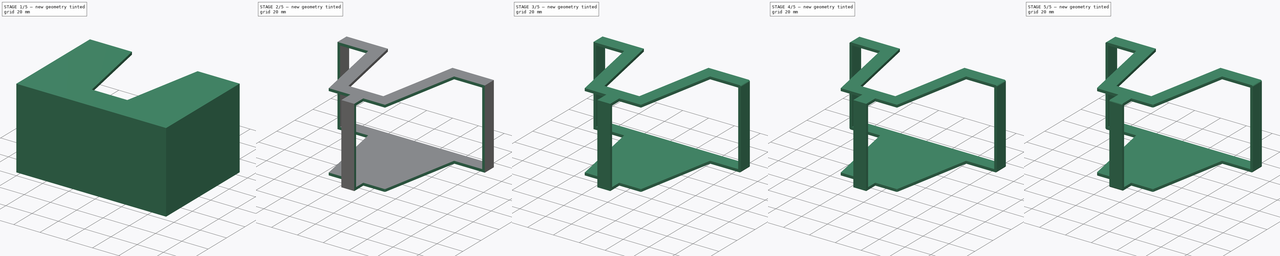
[diagram: build sequence overview — one tinted view per stage of 5, left to right]
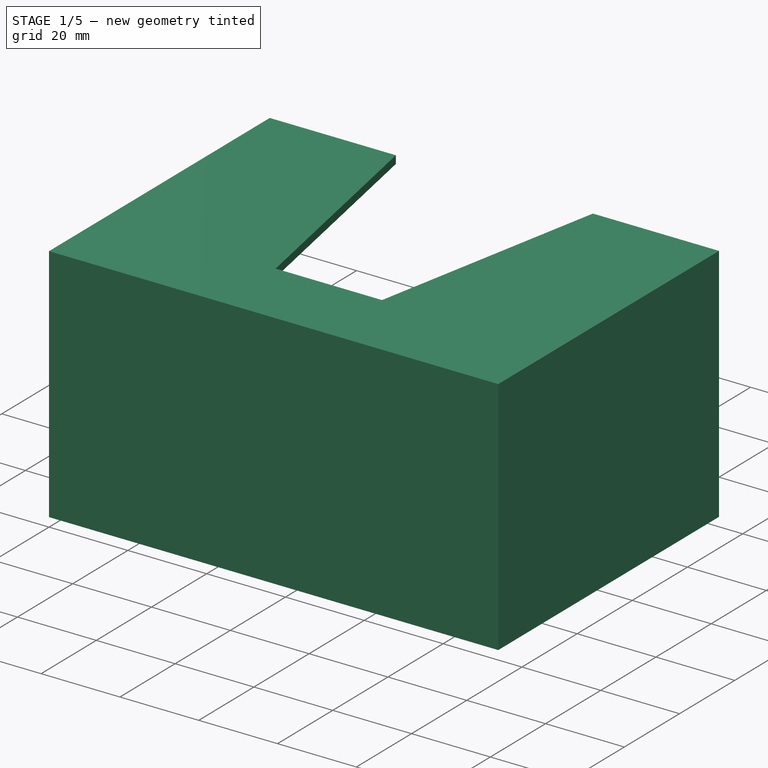
[diagram: stage 1 of 5 — iso view after this stage's code; geometry added in this stage tinted green]
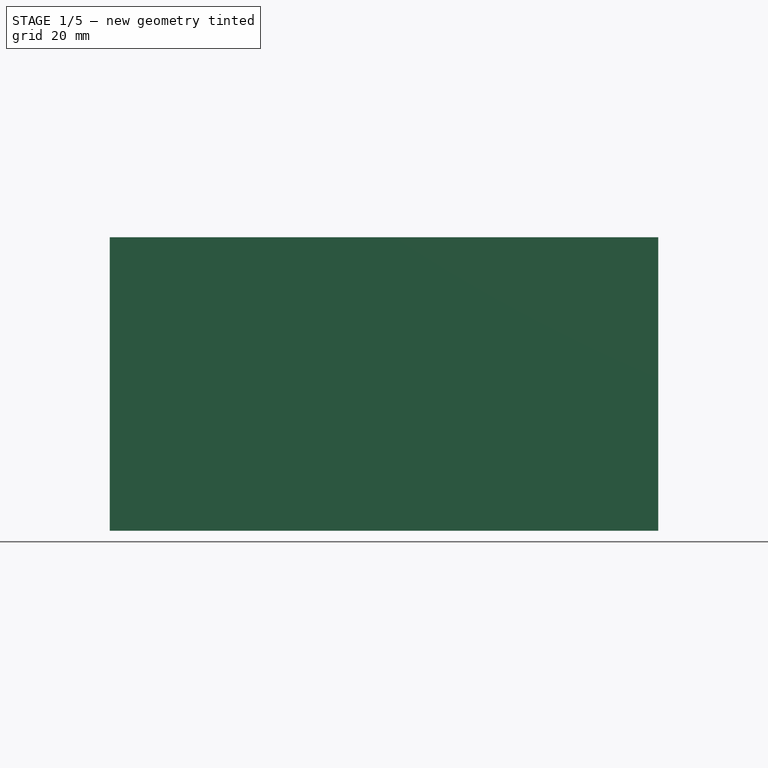
[diagram: stage 1 of 5 — front view after this stage's code; geometry added in this stage tinted green]
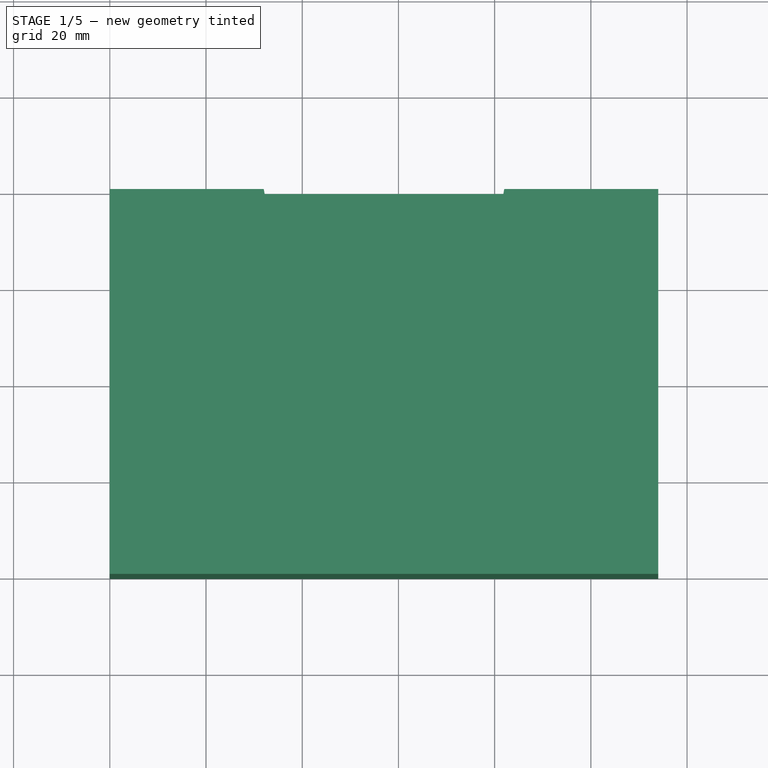
[diagram: stage 1 of 5 — top view after this stage's code; geometry added in this stage tinted green]
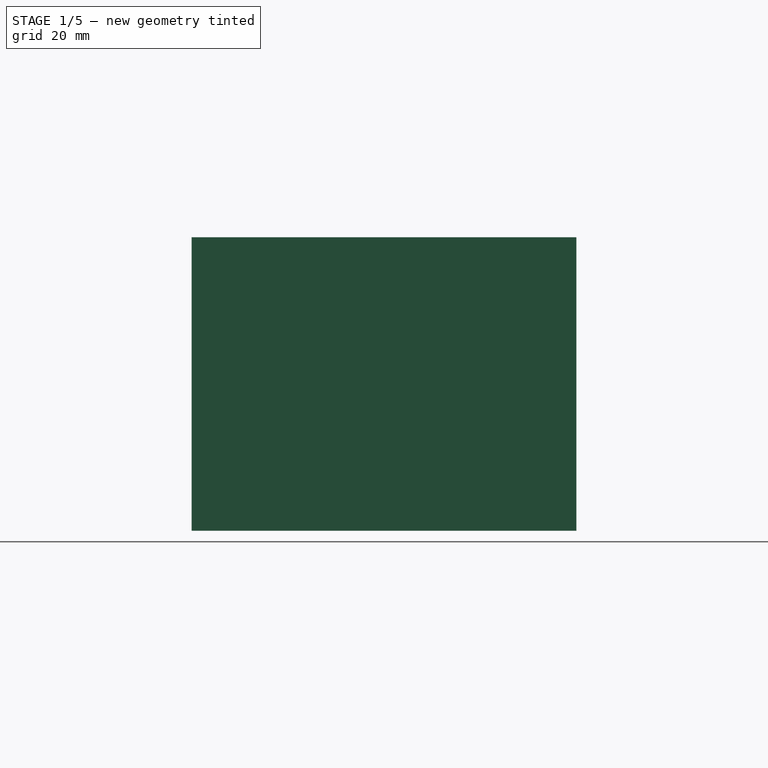
[diagram: stage 1 of 5 — right view after this stage's code; geometry added in this stage tinted green]
FCSTD DOCUMENT  (FreeCAD 0.18R16146 (Git))
Label: tissue_case
License: All rights reserved
LicenseURL: http://en.wikipedia.org/wiki/All_rights_reserved
objects: PartDesign::Fillet×11, Sketcher::SketchObject×6, PartDesign::Pad×3, PartDesign::Pocket×3, PartDesign::Body×1
note: 30 computed .brp shape members not serialized (recipe doc carries the construction recipe); baked Part::Feature solids carry a one-line shape summary decoded from their .brp

FEATURE [Sketcher::SketchObject] Sketch
  MapMode = 5
  Support = -> [XY_Plane]
  sketch-geometry (4):
    g0: LineSegment StartX=0 StartY=80 StartZ=0 EndX=114 EndY=80 EndZ=0
    g1: LineSegment StartX=114 StartY=80 StartZ=0 EndX=114 EndY=0 EndZ=0
    g2: LineSegment StartX=114 StartY=0 StartZ=0 EndX=0 EndY=0 EndZ=0
    g3: LineSegment StartX=0 StartY=0 StartZ=0 EndX=0 EndY=80 EndZ=0
  constraints (11):
    c: Coincident(g0,g1)
    c: Coincident(g1,g2)
    c: Coincident(g2,g3)
    c: Coincident(g3,g0)
    c: Horizontal(g0)
    c: Horizontal(g2)
    c: Vertical(g1)
    c: Vertical(g3)
    c: DistanceX(g0,g0) = 114
    c: DistanceY(g3,g3) = 80
    c: Coincident(g2,g-1)
FEATURE [PartDesign::Pad] Pad
  Length = 61
  Length2 = 100
  Profile = -> Sketch
  Type = 0
FEATURE [Sketcher::SketchObject] Sketch001
  ExternalGeometry = -> [Pad]
  MapMode = 5
  Placement = pos=(0,80,0) rot=(0,0.707107,0.707107;3.14159rad)
  Support = -> [Pad]
  sketch-geometry (4):
    g0: LineSegment StartX=-112 StartY=2 StartZ=0 EndX=-2 EndY=2 EndZ=0
    g1: LineSegment StartX=-2 StartY=2 StartZ=0 EndX=-2 EndY=59 EndZ=0
    g2: LineSegment StartX=-2 StartY=59 StartZ=0 EndX=-112 EndY=59 EndZ=0
    g3: LineSegment StartX=-112 StartY=59 StartZ=0 EndX=-112 EndY=2 EndZ=0
  constraints (12):
    c: Coincident(g0,g1)
    c: Coincident(g1,g2)
    c: Coincident(g2,g3)
    c: Coincident(g3,g0)
    c: Horizontal(g0)
    c: Horizontal(g2)
    c: Vertical(g1)
    c: Vertical(g3)
    c: Distance(g2,g-4) = 2
    c: Distance(g2,g-3) = 2
    c: Distance(g1,g-6) = 2
    c: Distance(g0,g-5) = 2
FEATURE [PartDesign::Pocket] Pocket
  BaseFeature = -> Pad
  Length = 78
  Length2 = 100
  Profile = -> Sketch001
  Type = 0
FEATURE [Sketcher::SketchObject] Sketch002
  ExternalGeometry = -> [Pocket]
  MapMode = 5
  Placement = pos=(0,0,61) rot=(0,0,1;0rad)
  Support = -> [Pocket]
  sketch-geometry (10):
    g0: LineSegment StartX=32 StartY=80 StartZ=0 EndX=43.5 EndY=20 EndZ=0
    g1: LineSegment StartX=43.5 StartY=20 StartZ=0 EndX=70.5 EndY=20 EndZ=0
    g2: LineSegment StartX=70.5 StartY=20 StartZ=0 EndX=82 EndY=80 EndZ=0
    g3: LineSegment StartX=82 StartY=80 StartZ=0 EndX=32 EndY=80 EndZ=0
    g4: LineSegment [constr] StartX=0 StartY=80 StartZ=0 EndX=32 EndY=80 EndZ=0
    g5: LineSegment [constr] StartX=32 StartY=80 StartZ=0 EndX=82 EndY=80 EndZ=0
    g6: LineSegment [constr] StartX=82 StartY=80 StartZ=0 EndX=114 EndY=80 EndZ=0
    g7: LineSegment [constr] StartX=0 StartY=20 StartZ=0 EndX=43.5 EndY=20 EndZ=0
    g8: LineSegment [constr] StartX=43.5 StartY=20 StartZ=0 EndX=70.5 EndY=20 EndZ=0
    g9: LineSegment [constr] StartX=70.5 StartY=20 StartZ=0 EndX=114 EndY=20 EndZ=0
  constraints (26):
    c: Coincident(g0,g1)
    c: Horizontal(g1)
    c: Coincident(g1,g2)
    c: Coincident(g2,g3)
    c: Coincident(g3,g0)
    c: Horizontal(g3)
    c: Distance(g0,g-3) = 20
    c: PointOnObject(g0,g-5)
    c: Distance(g1) = 27
    c: Coincident(g4,g5)
    c: Coincident(g5,g6)
    c: Equal(g4,g6)
    c: Coincident(g4,g-5)
    c: Coincident(g6,g-6)
    c: Coincident(g0,g4)
    c: Coincident(g2,g5)
    c: DistanceX(g3,g3) = 50
    c: Horizontal(g7)
    c: Coincident(g7,g8)
    c: Coincident(g8,g9)
    c: Horizontal(g9)
    c: Equal(g9,g7)
    c: Coincident(g7,g0)
    c: Coincident(g8,g1)
    c: PointOnObject(g7,g-4)
    c: PointOnObject(g9,g-6)
FEATURE [PartDesign::Pocket] Pocket001
  BaseFeature = -> Pocket
  Length = 2
  Length2 = 100
  Profile = -> Sketch002
  Type = 0
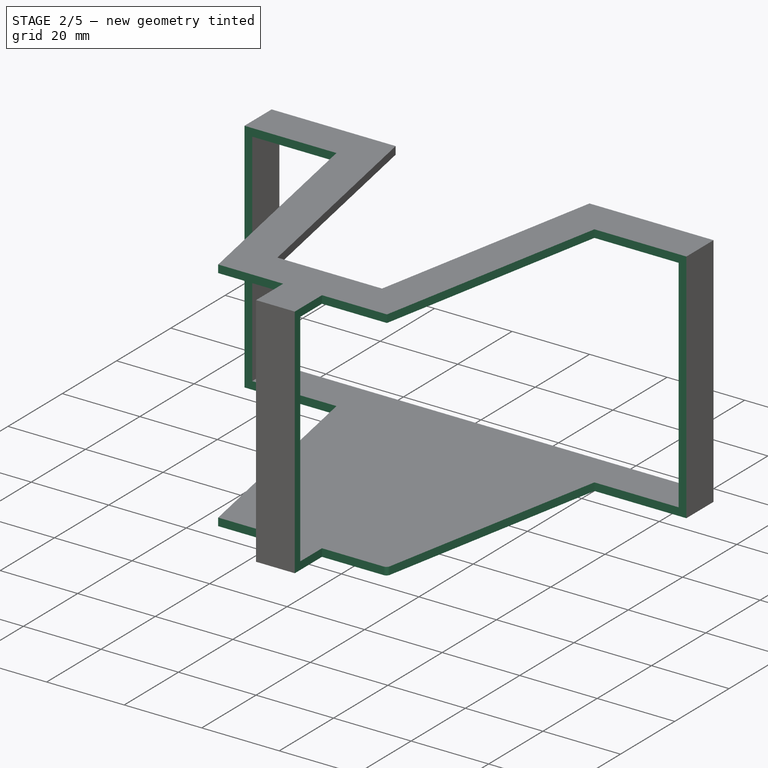
[diagram: stage 2 of 5 — iso view after this stage's code; geometry added in this stage tinted green]
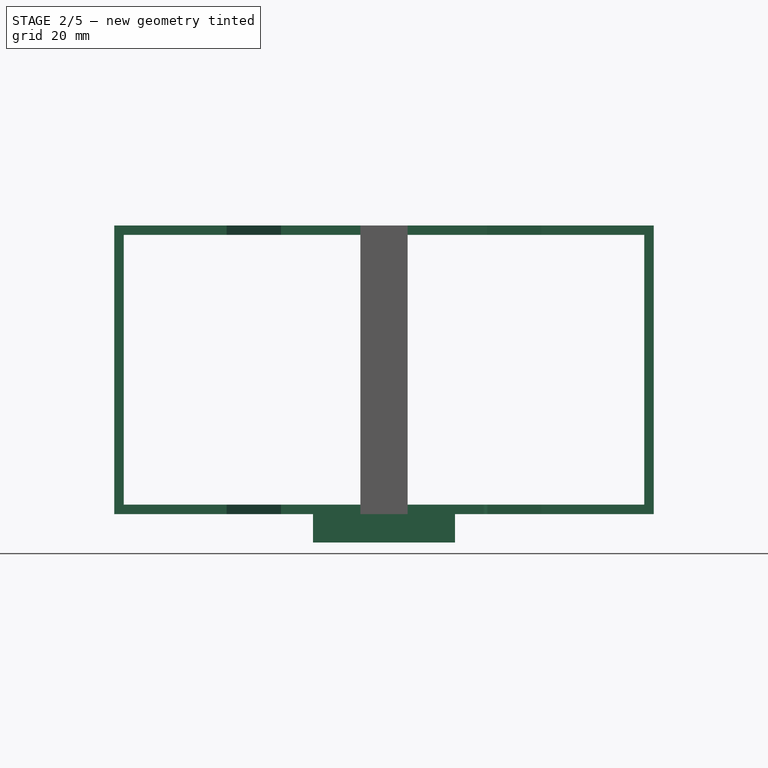
[diagram: stage 2 of 5 — front view after this stage's code; geometry added in this stage tinted green]
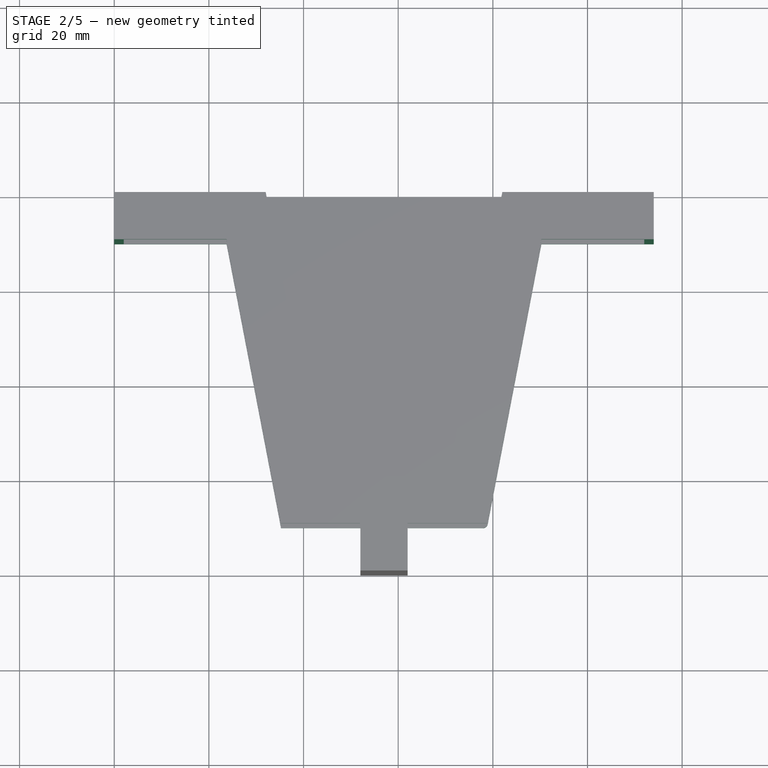
[diagram: stage 2 of 5 — top view after this stage's code; geometry added in this stage tinted green]
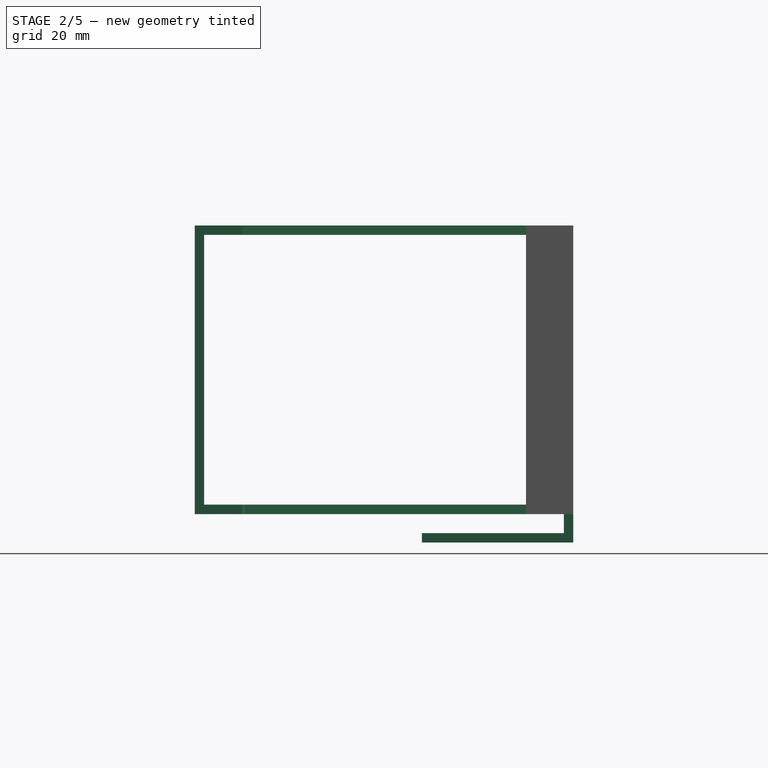
[diagram: stage 2 of 5 — right view after this stage's code; geometry added in this stage tinted green]
FEATURE [Sketcher::SketchObject] Sketch003
  ExternalGeometry = -> [Pocket001]
  MapMode = 5
  Placement = pos=(0,0,61) rot=(0,0,1;0rad)
  Support = -> [Pocket001]
  sketch-geometry (15):
    g0: LineSegment StartX=0 StartY=70 StartZ=0 EndX=23.7346 EndY=70 EndZ=0
    g1: LineSegment StartX=23.7346 StartY=70 StartZ=0 EndX=35.2346 EndY=10 EndZ=0
    g2: LineSegment StartX=35.2346 StartY=10 StartZ=0 EndX=52 EndY=10 EndZ=0
    g3: LineSegment StartX=78.7654 StartY=10 StartZ=0 EndX=90.2654 EndY=70 EndZ=0
    g4: LineSegment StartX=90.2654 StartY=70 StartZ=0 EndX=114 EndY=70 EndZ=0
    g5: LineSegment StartX=114 StartY=70 StartZ=0 EndX=114 EndY=0 EndZ=0
    g6: LineSegment StartX=114 StartY=0 StartZ=0 EndX=62 EndY=0 EndZ=0
    g7: LineSegment StartX=0 StartY=0 StartZ=0 EndX=0 EndY=70 EndZ=0
    g8: LineSegment StartX=52 StartY=10 StartZ=0 EndX=52 EndY=0 EndZ=0
    g9: LineSegment StartX=62 StartY=10 StartZ=0 EndX=62 EndY=0 EndZ=0
    g10: LineSegment StartX=62 StartY=10 StartZ=0 EndX=78.7654 EndY=10 EndZ=0
    g11: LineSegment StartX=52 StartY=0 StartZ=0 EndX=0 EndY=0 EndZ=0
    g12: LineSegment [constr] StartX=0 StartY=0 StartZ=0 EndX=52 EndY=0 EndZ=0
    g13: LineSegment [constr] StartX=52 StartY=0 StartZ=0 EndX=62 EndY=0 EndZ=0
    g14: LineSegment [constr] StartX=62 StartY=0 StartZ=0 EndX=114 EndY=0 EndZ=0
  constraints (40):
    c: Horizontal(g0)
    c: Coincident(g0,g1)
    c: Coincident(g1,g2)
    c: Coincident(g10,g3)
    c: Coincident(g3,g4)
    c: Horizontal(g4)
    c: Coincident(g4,g5)
    c: Vertical(g5)
    c: Coincident(g5,g6)
    c: Horizontal(g6)
    c: Coincident(g11,g7)
    c: Coincident(g7,g0)
    c: Vertical(g7)
    c: Horizontal(g2)
    c: Vertical(g8)
    c: Vertical(g9)
    c: Coincident(g2,g8)
    c: Coincident(g10,g9)
    c: Tangent(g2,g10)
    c: Coincident(g6,g9)
    c: Coincident(g11,g8)
    c: Tangent(g6,g11)
    c: PointOnObject(g7,g-9)
    c: PointOnObject(g5,g-6)
    c: Parallel(g1,g-3)
    c: Parallel(g3,g-4)
    c: Distance(g-5,g2) = 10
    c: Distance(g8,g9) = 10
    c: Distance(g-5,g3) = 10
    c: Distance(g-5,g1) = 10
    c: Distance(g0,g-8) = 10
    c: Distance(g-7,g4) = 10
    c: PointOnObject(g-1,g11)
    c: Coincident(g12,g13)
    c: Coincident(g13,g14)
    c: Equal(g14,g12)
    c: Coincident(g12,g7)
    c: Coincident(g14,g5)
    c: Coincident(g12,g8)
    c: Coincident(g13,g6)
FEATURE [PartDesign::Pocket] Pocket002
  BaseFeature = -> Pocket001
  Length = 90
  Length2 = 100
  Profile = -> Sketch003
  Type = 0
FEATURE [Sketcher::SketchObject] Sketch004
  ExternalGeometry = -> [Pocket002]
  MapMode = 5
  Placement = pos=(0,80,0) rot=(0,0.707107,0.707107;3.14159rad)
  Support = -> [Pocket002]
  sketch-geometry (7):
    g0: LineSegment [constr] StartX=-114 StartY=0 StartZ=0 EndX=-72 EndY=0 EndZ=0
    g1: LineSegment [constr] StartX=-72 StartY=0 StartZ=0 EndX=-42 EndY=0 EndZ=0
    g2: LineSegment [constr] StartX=-42 StartY=0 StartZ=0 EndX=0 EndY=0 EndZ=0
    g3: LineSegment StartX=-72 StartY=0 StartZ=0 EndX=-42 EndY=0 EndZ=0
    g4: LineSegment StartX=-42 StartY=0 StartZ=0 EndX=-42 EndY=-6 EndZ=0
    g5: LineSegment StartX=-42 StartY=-6 StartZ=0 EndX=-72 EndY=-6 EndZ=0
    g6: LineSegment StartX=-72 StartY=-6 StartZ=0 EndX=-72 EndY=0 EndZ=0
  constraints (18):
    c: Coincident(g0,g1)
    c: Coincident(g1,g2)
    c: Horizontal(g2)
    c: Horizontal(g1)
    c: Equal(g2,g0)
    c: Distance(g1) = 30
    c: Coincident(g0,g-3)
    c: Coincident(g2,g-1)
    c: Coincident(g3,g4)
    c: Coincident(g4,g5)
    c: Coincident(g5,g6)
    c: Coincident(g6,g3)
    c: Horizontal(g5)
    c: Vertical(g4)
    c: Vertical(g6)
    c: DistanceY(g4,g4) = 6
    c: Coincident(g3,g0)
    c: Coincident(g3,g1)
FEATURE [PartDesign::Pad] Pad001
  BaseFeature = -> Pocket002
  Length = 2
  Length2 = 100
  Profile = -> Sketch004
  Reversed = true
  Type = 0
FEATURE [Sketcher::SketchObject] Sketch005
  ExternalGeometry = -> [Pad001]
  MapMode = 5
  Placement = pos=(0,78,0) rot=(1,0,0;1.5708rad)
  Support = -> [Pad001]
  sketch-geometry (4):
    g0: LineSegment StartX=42 StartY=-4 StartZ=0 EndX=72 EndY=-4 EndZ=0
    g1: LineSegment StartX=72 StartY=-4 StartZ=0 EndX=72 EndY=-6 EndZ=0
    g2: LineSegment StartX=72 StartY=-6 StartZ=0 EndX=42 EndY=-6 EndZ=0
    g3: LineSegment StartX=42 StartY=-6 StartZ=0 EndX=42 EndY=-4 EndZ=0
  constraints (10):
    c: Coincident(g0,g1)
    c: Coincident(g1,g2)
    c: Coincident(g2,g3)
    c: Coincident(g3,g0)
    c: Horizontal(g0)
    c: Vertical(g1)
    c: Vertical(g3)
    c: DistanceY(g3,g3) = 2
    c: Coincident(g2,g-4)
    c: Coincident(g1,g-5)
FEATURE [PartDesign::Pad] Pad002
  BaseFeature = -> Pad001
  Length = 30
  Length2 = 100
  Profile = -> Sketch005
  Type = 0
FEATURE [PartDesign::Fillet] Fillet
  Base = -> Pad002 [Edge88]
  BaseFeature = -> Pad002
  Radius = 1
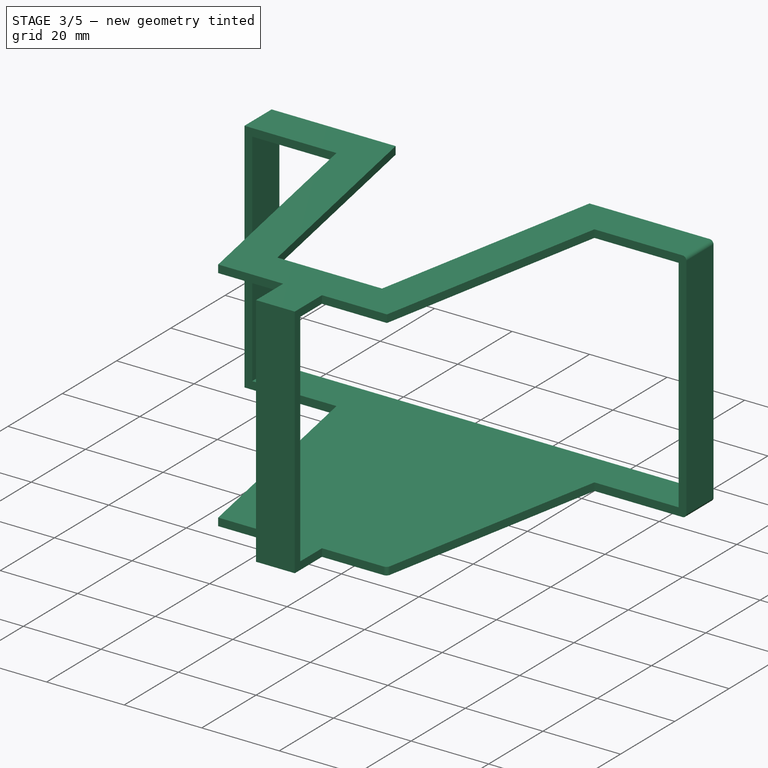
[diagram: stage 3 of 5 — iso view after this stage's code; geometry added in this stage tinted green]
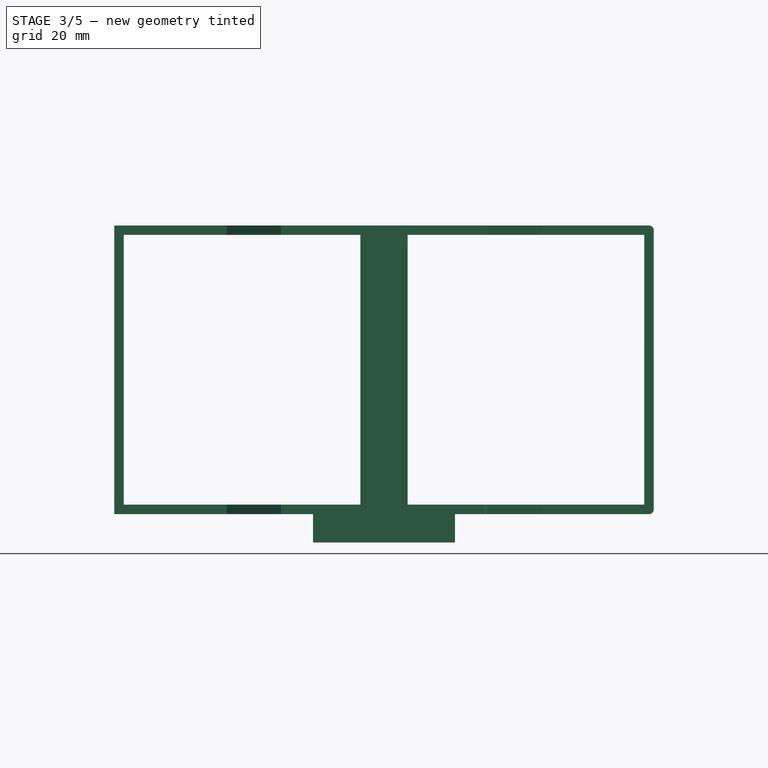
[diagram: stage 3 of 5 — front view after this stage's code; geometry added in this stage tinted green]
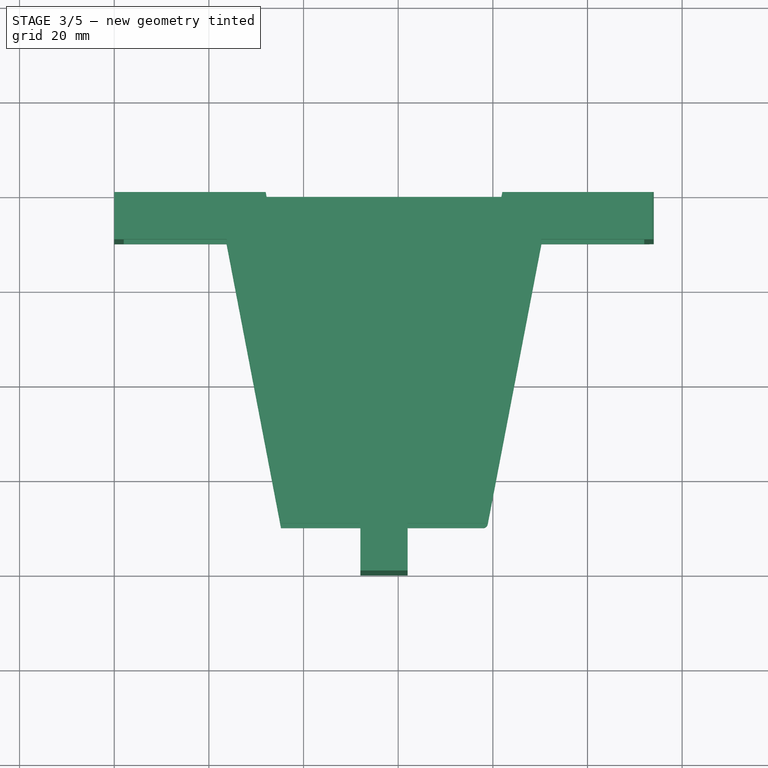
[diagram: stage 3 of 5 — top view after this stage's code; geometry added in this stage tinted green]
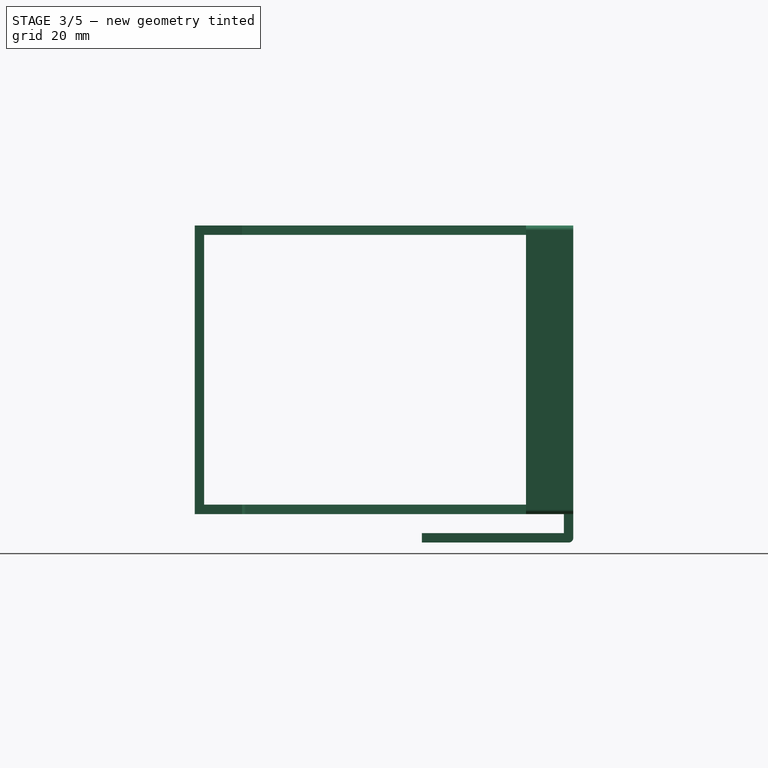
[diagram: stage 3 of 5 — right view after this stage's code; geometry added in this stage tinted green]
FEATURE [PartDesign::Fillet] Fillet001
  Base = -> Fillet [Edge8]
  BaseFeature = -> Fillet
  Radius = 1
FEATURE [PartDesign::Fillet] Fillet002
  Base = -> Fillet001 [Edge80]
  BaseFeature = -> Fillet001
  Radius = 1
FEATURE [PartDesign::Fillet] Fillet003
  Base = -> Fillet002 [Edge108]
  BaseFeature = -> Fillet002
  Radius = 1
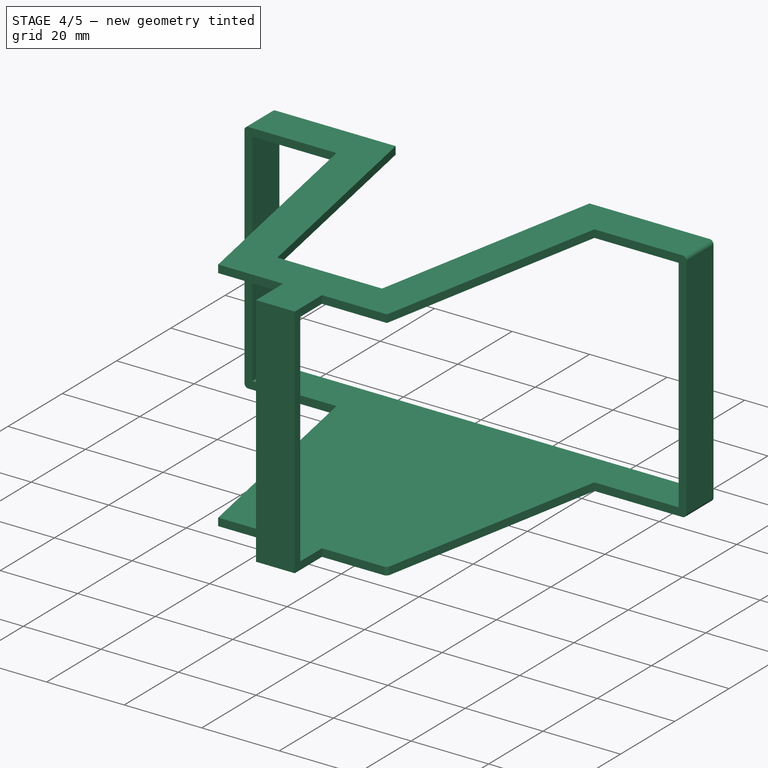
[diagram: stage 4 of 5 — iso view after this stage's code; geometry added in this stage tinted green]
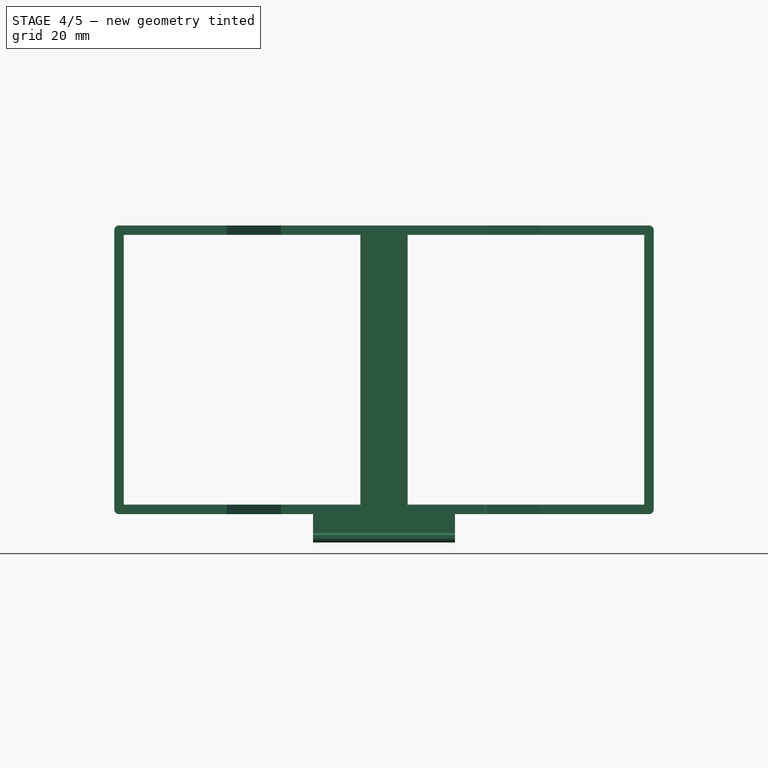
[diagram: stage 4 of 5 — front view after this stage's code; geometry added in this stage tinted green]
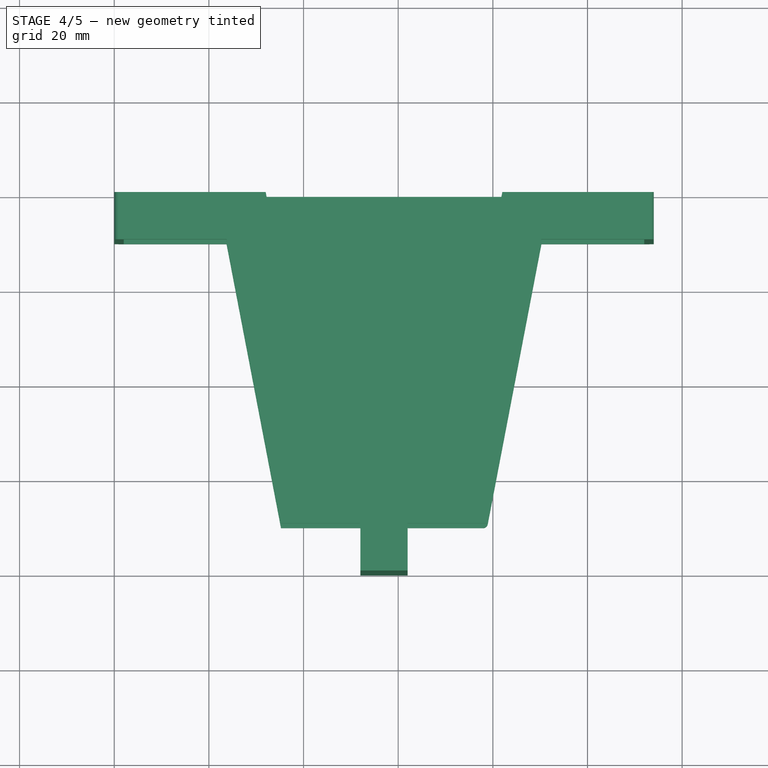
[diagram: stage 4 of 5 — top view after this stage's code; geometry added in this stage tinted green]
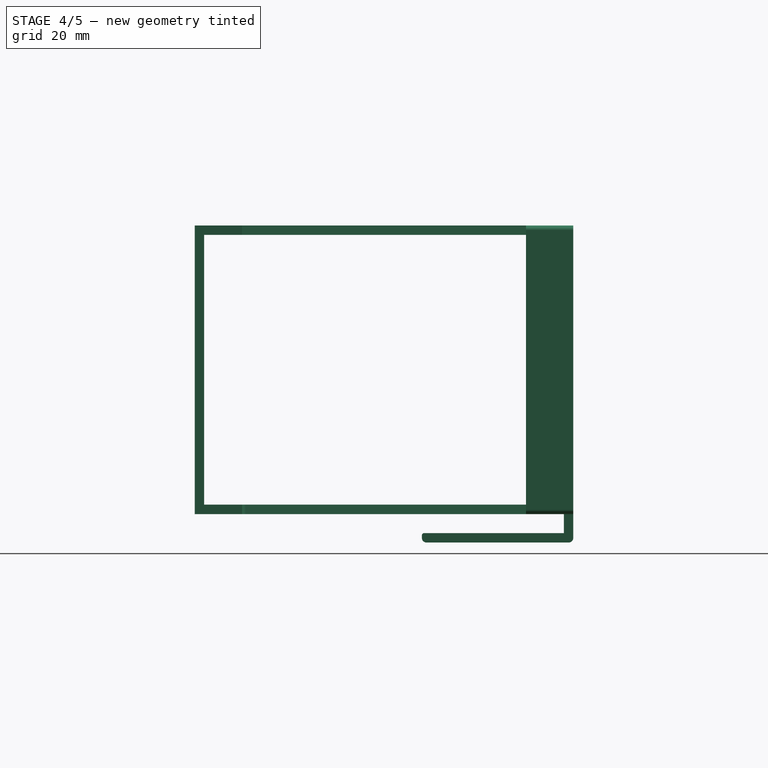
[diagram: stage 4 of 5 — right view after this stage's code; geometry added in this stage tinted green]
FEATURE [PartDesign::Fillet] Fillet004
  Base = -> Fillet003 [Edge37]
  BaseFeature = -> Fillet003
  Radius = 1
FEATURE [PartDesign::Fillet] Fillet005
  Base = -> Fillet004 [Edge16]
  BaseFeature = -> Fillet004
  Radius = 0.5
FEATURE [PartDesign::Fillet] Fillet006
  Base = -> Fillet005 [Edge43]
  BaseFeature = -> Fillet005
  Radius = 1
FEATURE [PartDesign::Fillet] Fillet007
  Base = -> Fillet006 [Edge87]
  BaseFeature = -> Fillet006
  Radius = 1
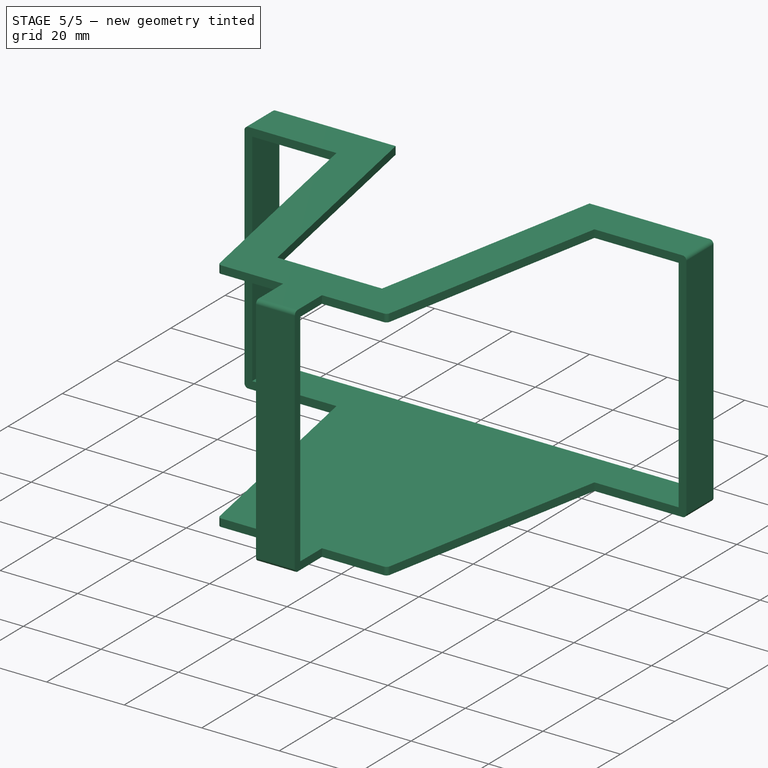
[diagram: stage 5 of 5 — iso view after this stage's code; geometry added in this stage tinted green]
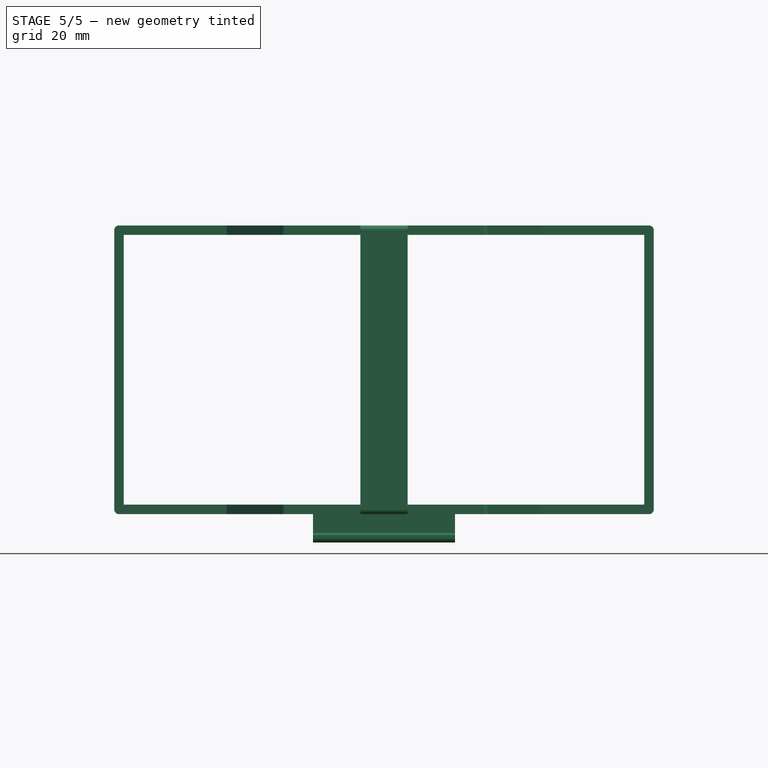
[diagram: stage 5 of 5 — front view after this stage's code; geometry added in this stage tinted green]
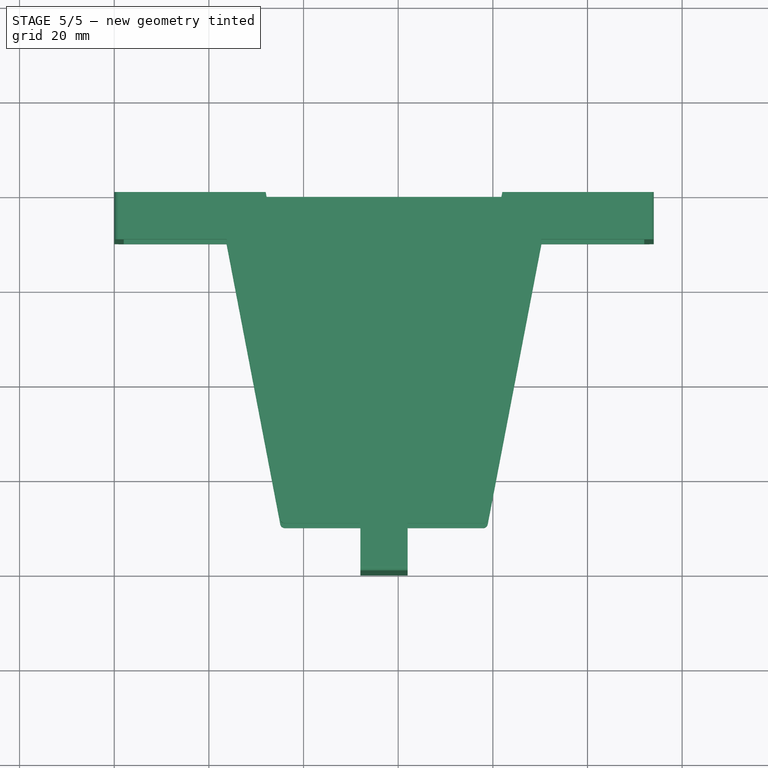
[diagram: stage 5 of 5 — top view after this stage's code; geometry added in this stage tinted green]
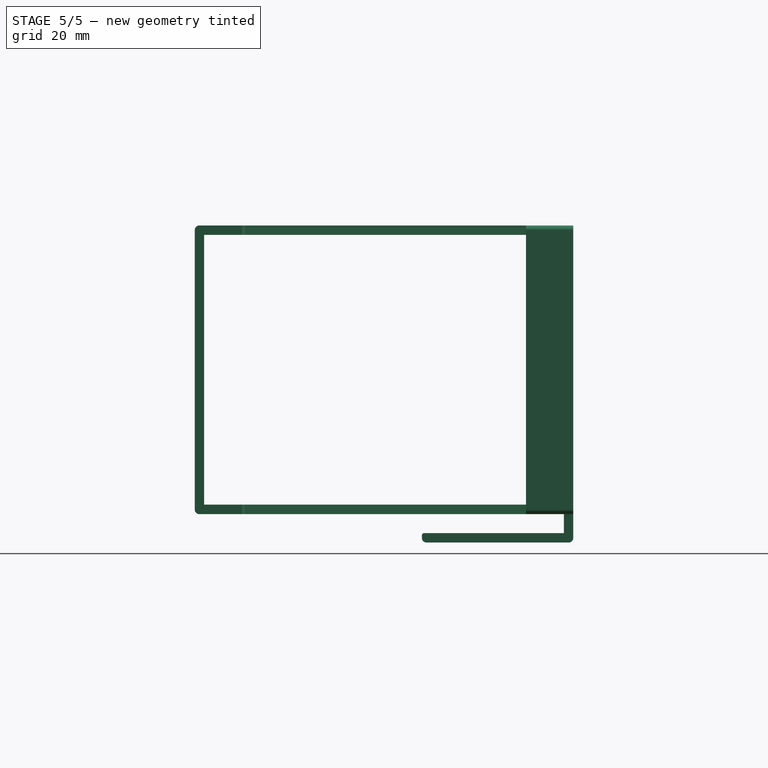
[diagram: stage 5 of 5 — right view after this stage's code; geometry added in this stage tinted green]
FEATURE [PartDesign::Fillet] Fillet008
  Base = -> Fillet007 [Edge104,Edge93]
  BaseFeature = -> Fillet007
  Radius = 1
FEATURE [PartDesign::Fillet] Fillet009
  Base = -> Fillet008 [Edge8,Edge57]
  BaseFeature = -> Fillet008
  Radius = 1
FEATURE [PartDesign::Fillet] Fillet010
  Base = -> Fillet009 [Edge112]
  BaseFeature = -> Fillet009
  Radius = 1
FEATURE [PartDesign::Body] Body
  Group = -> [Sketch,Pad,Sketch001,Pocket,Sketch002,Pocket001,Sketch003,Pocket002,Sketch004,Pad001,Sketch005,Pad002,Fillet,Fillet001,Fillet002,Fillet003,Fillet004,Fillet005,Fillet006,Fillet007,Fillet008,Fillet009,Fillet010]
  Origin = -> Origin
  Tip = -> Fillet010
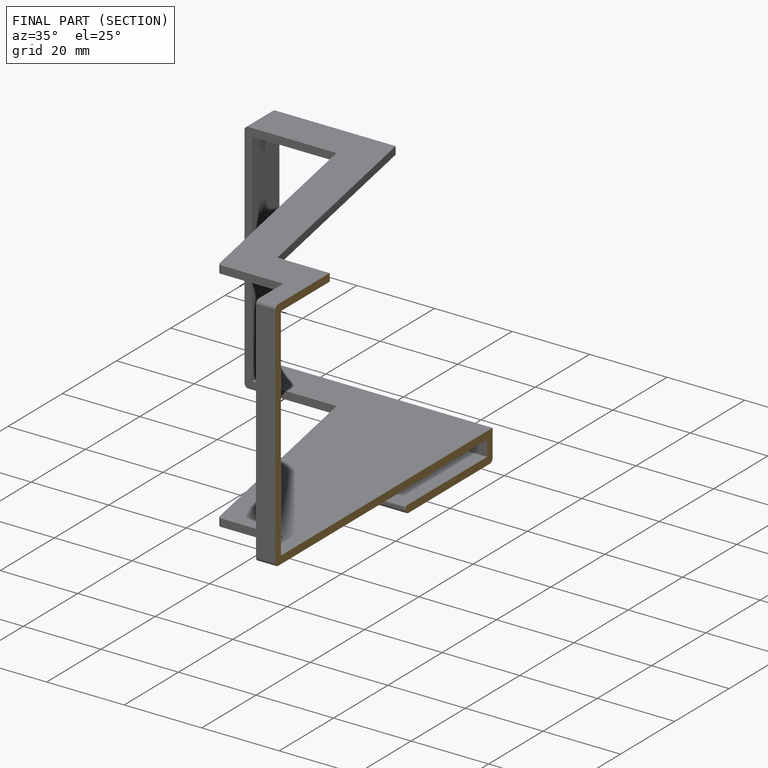
[diagram: finished part — half-section view (interior)]
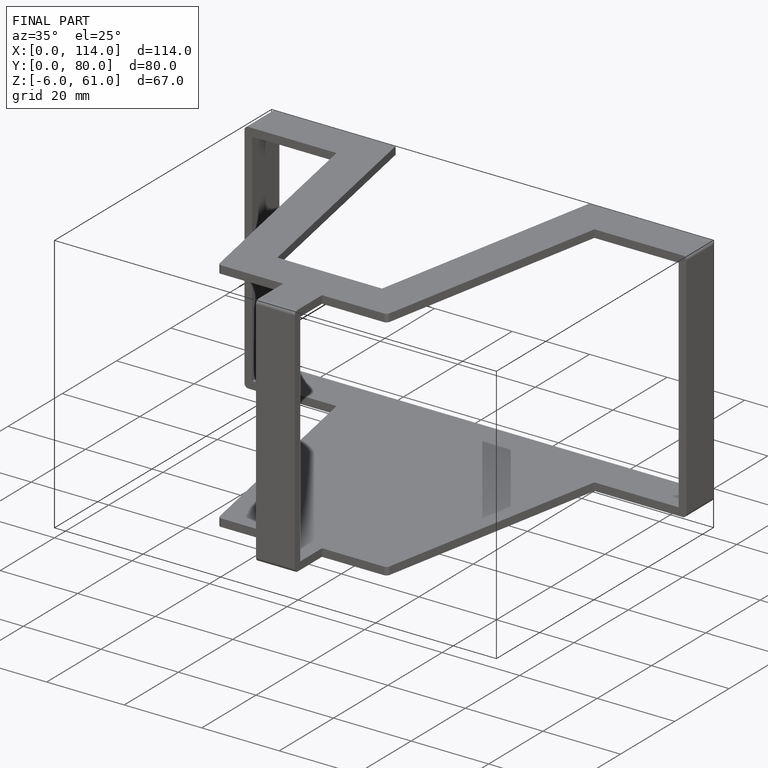
[diagram: finished part — iso view with bounding-box wireframe]
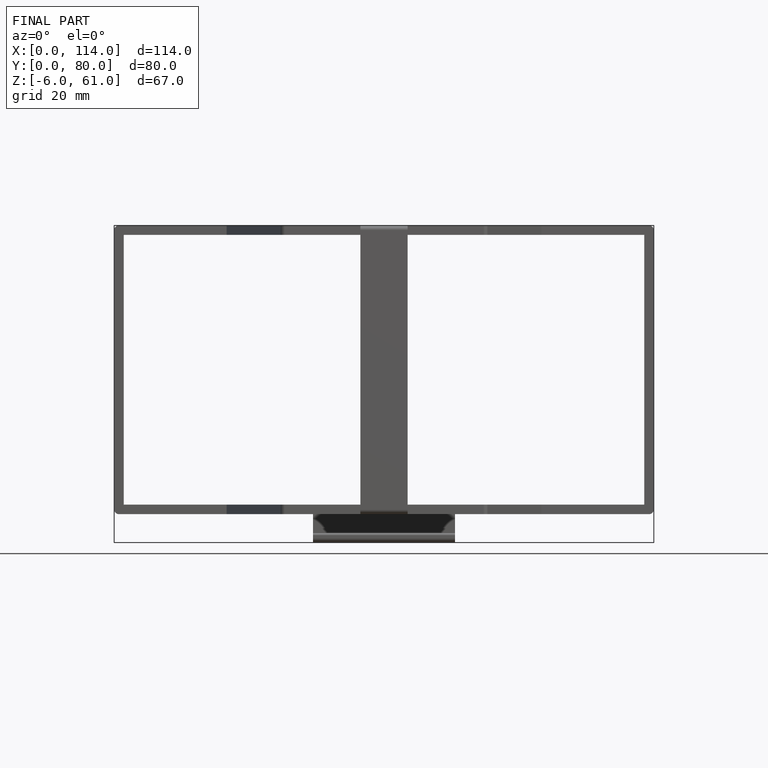
[diagram: finished part — front view with bounding-box wireframe]
